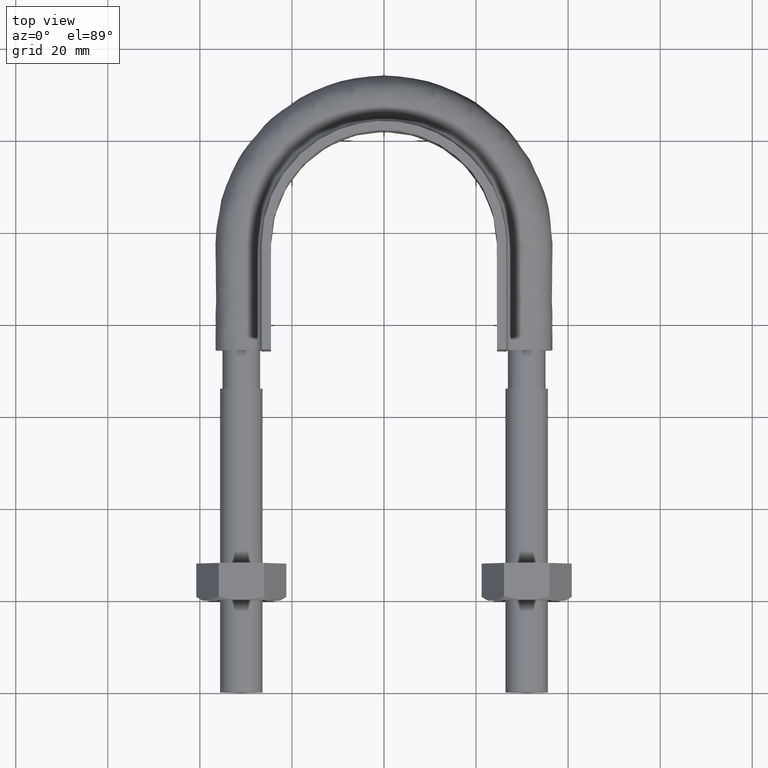
[diagram: clean part render]
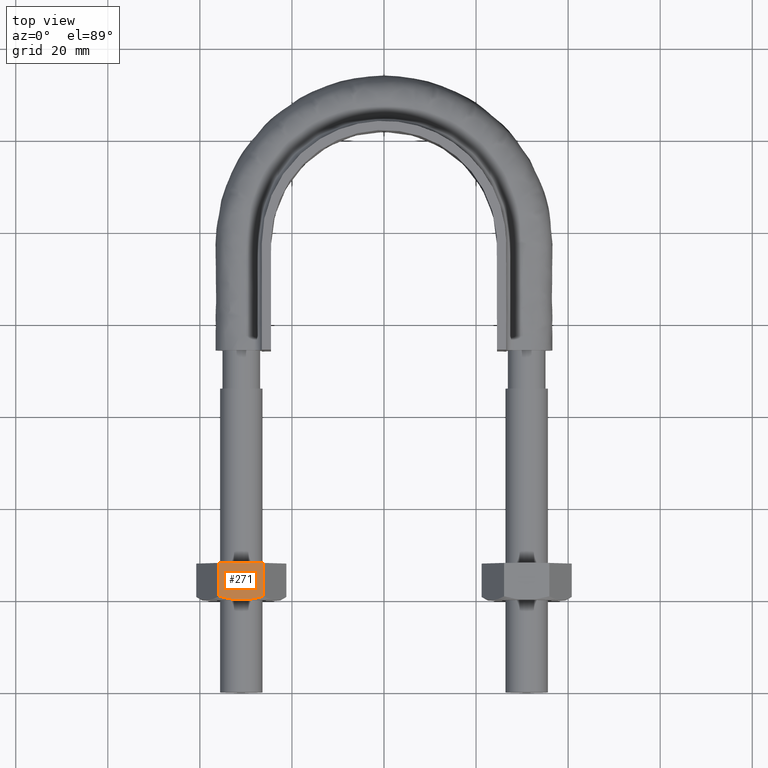
[diagram: same view with one face highlighted and labeled with its STEP entity id]
A machine part, top view. The second image highlights one B-rep face of the part: STEP entity #271.
In plain terms, the highlighted planar face has unit normal (-0, 0, -1).
Its self-contained STEP definition (entity closure, byte-faithful):
#271 = ADVANCED_FACE( '', ( #415 ), #416, .F. );
#415 = FACE_OUTER_BOUND( '', #1412, .T. );
#416 = PLANE( '', #1413 );
#1412 = EDGE_LOOP( '', ( #1822, #1823, #1824, #1825, #1826 ) );
#1413 = AXIS2_PLACEMENT_3D( '', #1827, #1828, #1829 );
#1822 = ORIENTED_EDGE( '', *, *, #2091, .F. );
#1823 = ORIENTED_EDGE( '', *, *, #2075, .F. );
#1824 = ORIENTED_EDGE( '', *, *, #2101, .F. );
#1825 = ORIENTED_EDGE( '', *, *, #2098, .F. );
#1826 = ORIENTED_EDGE( '', *, *, #2102, .F. );
#1827 = CARTESIAN_POINT( '', ( -35.9074772881118, 28.0000000000000, 8.50000000000001 ) );
#1828 = DIRECTION( '', ( -1.11022302462516E-016, 3.06151588455594E-016, -1.00000000000000 ) );
#1829 = DIRECTION( '', ( -1.00000000000000, 0.000000000000000, 1.11022302462516E-016 ) );
#2075 = EDGE_CURVE( '', #2276, #2274, #2278, .T. );
#2091 = EDGE_CURVE( '', #2274, #2301, #2302, .T. );
#2098 = EDGE_CURVE( '', #2310, #2307, #2312, .T. );
#2101 = EDGE_CURVE( '', #2307, #2276, #2317, .F. );
#2102 = EDGE_CURVE( '', #2301, #2310, #2318, .T. );
#2274 = VERTEX_POINT( '', #2803 );
#2276 = VERTEX_POINT( '', #2805 );
#2278 = B_SPLINE_CURVE_WITH_KNOTS( '', 3, ( #2807, #2808, #2809, #2810, #2811, #2812 ), .UNSPECIFIED., .F., .F., ( 4, 2, 4 ), ( 1.43048962453820E-017, 0.00246745482903607, 0.00493490965807212 ), .UNSPECIFIED. );
#2301 = VERTEX_POINT( '', #2859 );
#2302 = B_SPLINE_CURVE_WITH_KNOTS( '', 3, ( #2860, #2861, #2862, #2863, #2864, #2865 ), .UNSPECIFIED., .F., .F., ( 4, 2, 4 ), ( 0.000000000000000, 0.00246745482903606, 0.00493490965807211 ), .UNSPECIFIED. );
#2307 = VERTEX_POINT( '', #2872 );
#2310 = VERTEX_POINT( '', #2875 );
#2312 = LINE( '', #2877, #2878 );
#2317 = LINE( '', #2883, #2884 );
#2318 = LINE( '', #2885, #2886 );
#2803 = CARTESIAN_POINT( '', ( -31.0000000000000, 20.0000000000000, 8.50000000000001 ) );
#2805 = CARTESIAN_POINT( '', ( -26.1225006406971, 20.7505553499465, 8.50000000000001 ) );
#2807 = CARTESIAN_POINT( '', ( -26.1225006406971, 20.7505553499465, 8.50000000000001 ) );
#2808 = CARTESIAN_POINT( '', ( -26.9194282933227, 20.5215585493657, 8.50000000000001 ) );
#2809 = CARTESIAN_POINT( '', ( -27.7225568243372, 20.3328582843707, 8.50000000000001 ) );
#2810 = CARTESIAN_POINT( '', ( -29.3466937523143, 20.0716504305290, 8.50000000000001 ) );
#2811 = CARTESIAN_POINT( '', ( -30.1678340498093, 20.0000000000000, 8.50000000000001 ) );
#2812 = CARTESIAN_POINT( '', ( -31.0000000000000, 20.0000000000000, 8.50000000000001 ) );
#2859 = CARTESIAN_POINT( '', ( -35.8774993593029, 20.7505553499465, 8.50000000000001 ) );
#2860 = CARTESIAN_POINT( '', ( -31.0000000000000, 20.0000000000000, 8.50000000000001 ) );
#2861 = CARTESIAN_POINT( '', ( -31.8321659501907, 20.0000000000000, 8.50000000000001 ) );
#2862 = CARTESIAN_POINT( '', ( -32.6533062476857, 20.0716504305290, 8.50000000000001 ) );
#2863 = CARTESIAN_POINT( '', ( -34.2774431756628, 20.3328582843707, 8.50000000000001 ) );
#2864 = CARTESIAN_POINT( '', ( -35.0805717066773, 20.5215585493657, 8.50000000000001 ) );
#2865 = CARTESIAN_POINT( '', ( -35.8774993593029, 20.7505553499465, 8.50000000000001 ) );
#2872 = CARTESIAN_POINT( '', ( -26.1225006406971, 28.0000000000000, 8.50000000000001 ) );
#2875 = CARTESIAN_POINT( '', ( -35.8774993593029, 28.0000000000000, 8.50000000000001 ) );
#2877 = CARTESIAN_POINT( '', ( -35.9000000000000, 28.0000000000000, 8.50000000000001 ) );
#2878 = VECTOR( '', #3192, 1000.00000000000 );
#2883 = CARTESIAN_POINT( '', ( -26.1225006406971, 28.0000000000000, 8.50000000000001 ) );
#2884 = VECTOR( '', #3199, 1000.00000000000 );
#2885 = CARTESIAN_POINT( '', ( -35.8774993593029, 28.0000000000000, 8.50000000000001 ) );
#2886 = VECTOR( '', #3200, 1000.00000000000 );
#3192 = DIRECTION( '', ( 1.00000000000000, -2.44921270764475E-016, -1.11022302462516E-016 ) );
#3199 = DIRECTION( '', ( 2.44921270764476E-016, 1.00000000000000, 3.06151588455594E-016 ) );
#3200 = DIRECTION( '', ( 2.44921270764476E-016, 1.00000000000000, 3.06151588455594E-016 ) );